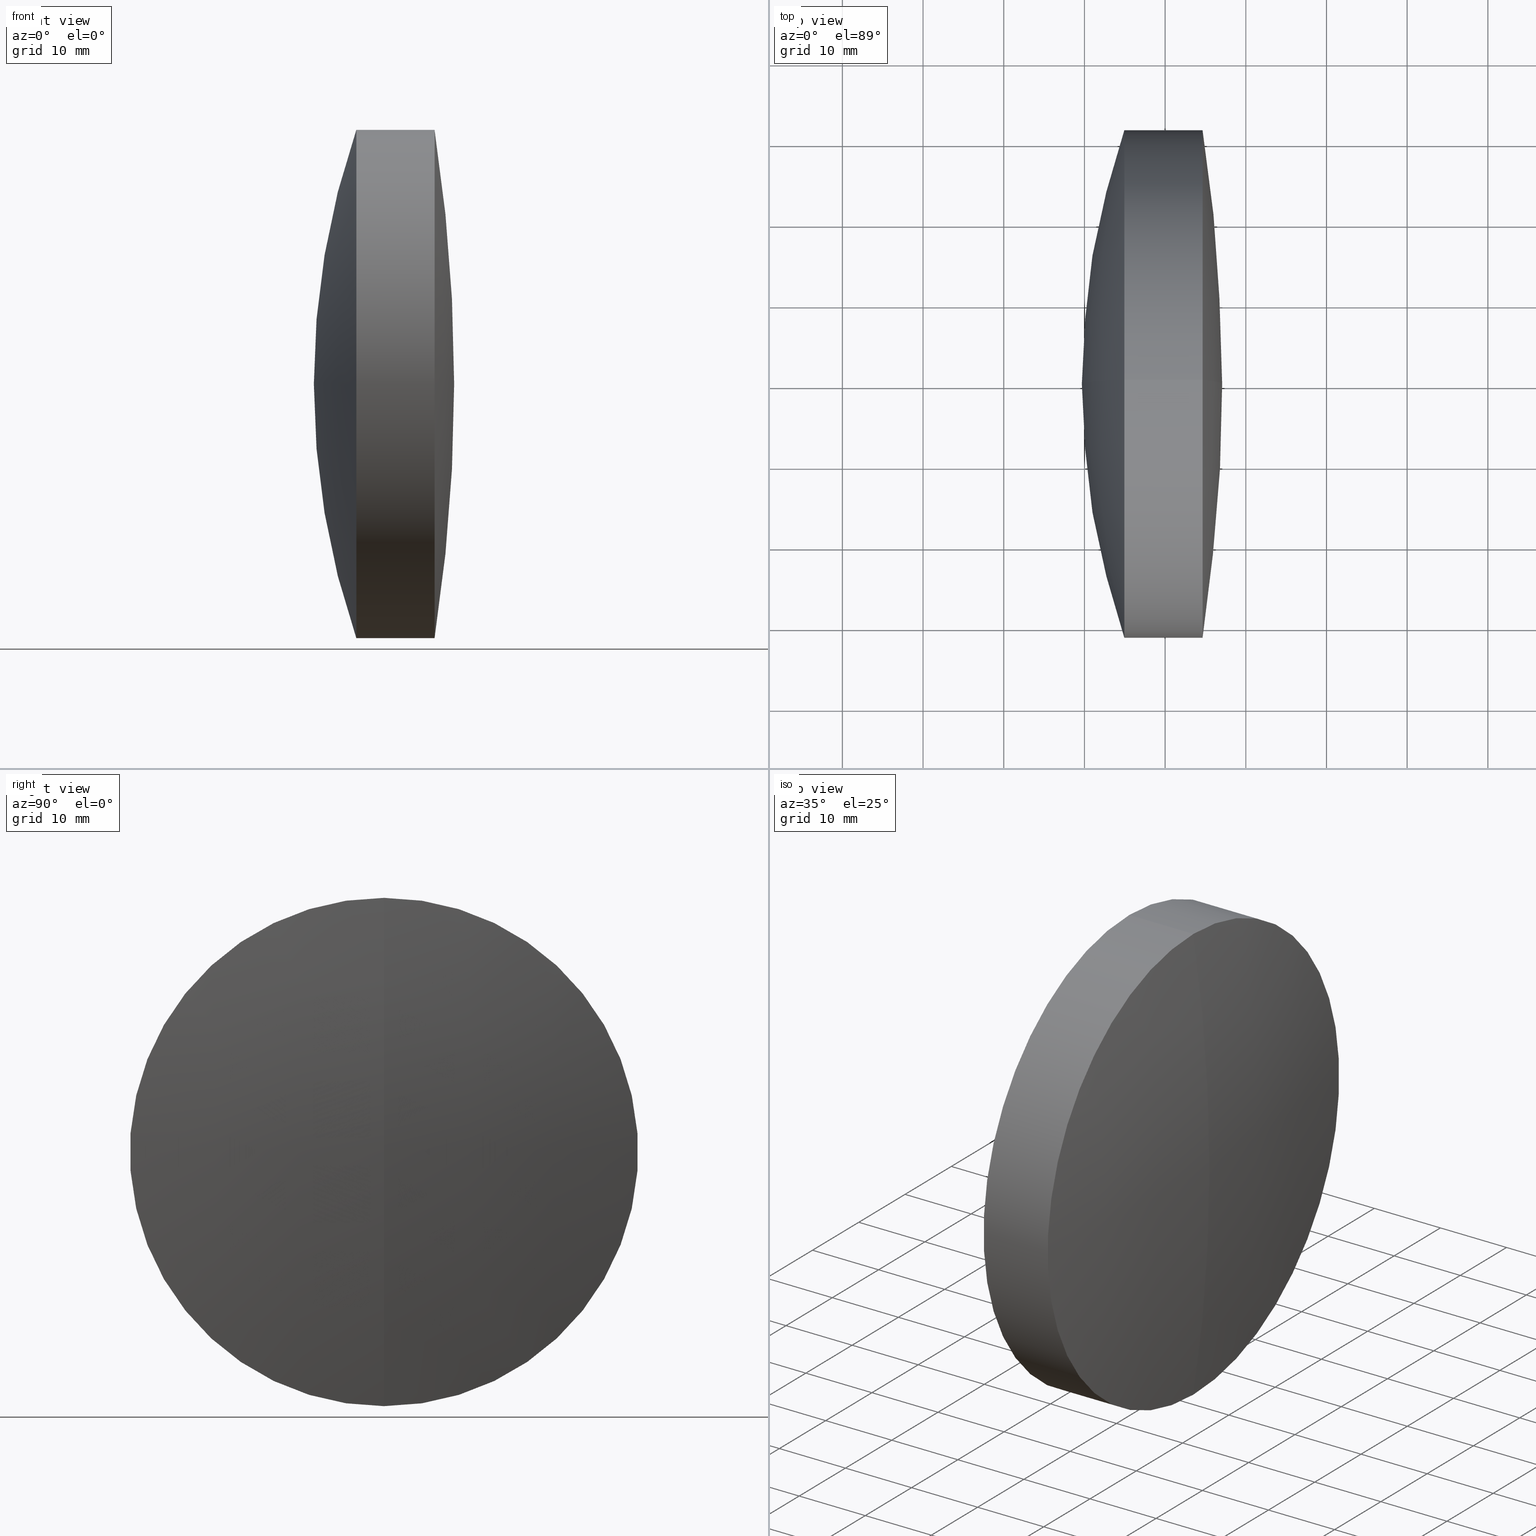
[diagram: canonical four-view strip — front | top / right | iso, engineering-drawing reading convention]
A machine part, canonical four-view strip (front | top / right | iso — engineering-drawing reading convention). The complete STEP part file that produces these views, byte-faithful:
ISO-10303-21;
HEADER;
FILE_DESCRIPTION (( 'STEP AP214' ),
    '1' );
FILE_NAME ('145099.STEP',
    '2019-05-28T02:43:21',
    ( 'user' ),
    ( '΢���й�' ),
    'SwSTEP 2.0',
    'SolidWorks 2016',
    '' );
FILE_SCHEMA (( 'AUTOMOTIVE_DESIGN' ));
ENDSEC;

DATA;
#1 = EDGE_LOOP ( 'NONE', ( #212, #343, #2, #134 ) ) ;
#2 = ORIENTED_EDGE ( 'NONE', *, *, #14, .T. ) ;
#3 = PRODUCT_DEFINITION_FORMATION_WITH_SPECIFIED_SOURCE ( '�κ�', '', #194, .NOT_KNOWN. ) ;
#4 = ORIENTED_EDGE ( 'NONE', *, *, #104, .F. ) ;
#5 = CIRCLE ( 'NONE', #95, 31.50000000000004300 ) ;
#6 = STYLED_ITEM ( 'NONE', ( #199 ), #301 ) ;
#7 = DIRECTION ( 'NONE',  ( -1.000000000000000000, -0.0000000000000000000, -0.0000000000000000000 ) ) ;
#8 = FACE_OUTER_BOUND ( 'NONE', #51, .T. ) ;
#9 = ADVANCED_FACE ( 'NONE', ( #100 ), #23, .T. ) ;
#10 = DIRECTION ( 'NONE',  ( -1.000000000000000000, -0.0000000000000000000, -0.0000000000000000000 ) ) ;
#11 = AXIS2_PLACEMENT_3D ( 'NONE', #163, #131, #336 ) ;
#12 = ORIENTED_EDGE ( 'NONE', *, *, #56, .F. ) ;
#13 = DIRECTION ( 'NONE',  ( 0.0000000000000000000, 0.0000000000000000000, 1.000000000000000000 ) ) ;
#14 = EDGE_CURVE ( 'NONE', #27, #249, #209, .T. ) ;
#15 = PRESENTATION_LAYER_ASSIGNMENT (  '', '', ( #72 ) ) ;
#16 = DIRECTION ( 'NONE',  ( 0.0000000000000000000, 0.0000000000000000000, 1.000000000000000000 ) ) ;
#17 = CARTESIAN_POINT ( 'NONE',  ( 314.9446393134603600, 0.0000000000000000000, 0.0000000000000000000 ) ) ;
#18 = DIRECTION ( 'NONE',  ( 0.0000000000000000000, 0.0000000000000000000, 1.000000000000000000 ) ) ;
#19 = ORIENTED_EDGE ( 'NONE', *, *, #267, .F. ) ;
#20 = VECTOR ( 'NONE', #139, 1000.000000000000000 ) ;
#21 = AXIS2_PLACEMENT_3D ( 'NONE', #297, #305, #18 ) ;
#22 =( NAMED_UNIT ( * ) SI_UNIT ( $, .STERADIAN. ) SOLID_ANGLE_UNIT ( ) );
#23 = SPHERICAL_SURFACE ( 'NONE', #193, 71.38999999999997200 ) ;
#24 =( NAMED_UNIT ( * ) PLANE_ANGLE_UNIT ( ) SI_UNIT ( $, .RADIAN. ) );
#25 = CARTESIAN_POINT ( 'NONE',  ( 324.6429958763490600, 0.0000000000000000000, 31.50000000000004300 ) ) ;
#26 = DIRECTION ( 'NONE',  ( -1.000000000000000000, -0.0000000000000000000, -0.0000000000000000000 ) ) ;
#27 = VERTEX_POINT ( 'NONE', #258 ) ;
#28 = ORIENTED_EDGE ( 'NONE', *, *, #104, .T. ) ;
#29 = CARTESIAN_POINT ( 'NONE',  ( 314.9446393134603600, 0.0000000000000000000, 0.0000000000000000000 ) ) ;
#30 =( GEOMETRIC_REPRESENTATION_CONTEXT ( 3 ) GLOBAL_UNCERTAINTY_ASSIGNED_CONTEXT ( ( #331 ) ) GLOBAL_UNIT_ASSIGNED_CONTEXT ( ( #35, #38, #211 ) ) REPRESENTATION_CONTEXT ( 'NONE', 'WORKASPACE' ) );
#31 = ADVANCED_FACE ( 'NONE', ( #115 ), #84, .T. ) ;
#32 = DIRECTION ( 'NONE',  ( -0.0000000000000000000, 1.000000000000000000, 1.224646799147353200E-016 ) ) ;
#33 = AXIS2_PLACEMENT_3D ( 'NONE', #311, #40, #61 ) ;
#34 = ORIENTED_EDGE ( 'NONE', *, *, #228, .T. ) ;
#35 =( LENGTH_UNIT ( ) NAMED_UNIT ( * ) SI_UNIT ( .MILLI., .METRE. ) );
#36 = UNCERTAINTY_MEASURE_WITH_UNIT (LENGTH_MEASURE( 1.000000000000000100E-005 ), #50, 'distance_accuracy_value', 'NONE');
#37 = SURFACE_SIDE_STYLE ('',( #85 ) ) ;
#38 =( NAMED_UNIT ( * ) PLANE_ANGLE_UNIT ( ) SI_UNIT ( $, .RADIAN. ) );
#39 = PRESENTATION_LAYER_ASSIGNMENT (  '', '', ( #6 ) ) ;
#40 = DIRECTION ( 'NONE',  ( -1.000000000000000000, -0.0000000000000000000, -0.0000000000000000000 ) ) ;
#41 = ORIENTED_EDGE ( 'NONE', *, *, #144, .T. ) ;
#42 = PRESENTATION_LAYER_ASSIGNMENT (  '', '', ( #215 ) ) ;
#43 = MANIFOLD_SOLID_BREP ( '��ת3', #146 ) ;
#44 = ORIENTED_EDGE ( 'NONE', *, *, #240, .T. ) ;
#45 = DIRECTION ( 'NONE',  ( 0.0000000000000000000, -1.224646799147353000E-016, 1.000000000000000000 ) ) ;
#46 = AXIS2_PLACEMENT_3D ( 'NONE', #327, #83, #156 ) ;
#47 = APPLICATION_CONTEXT ( 'automotive_design' ) ;
#48 = DIRECTION ( 'NONE',  ( 0.0000000000000000000, 1.000000000000000000, 0.0000000000000000000 ) ) ;
#49 = PRODUCT_CONTEXT ( 'NONE', #325, 'mechanical' ) ;
#50 =( LENGTH_UNIT ( ) NAMED_UNIT ( * ) SI_UNIT ( .MILLI., .METRE. ) );
#51 = EDGE_LOOP ( 'NONE', ( #81, #248, #188 ) ) ;
#52 = DIRECTION ( 'NONE',  ( 0.0000000000000000000, 0.0000000000000000000, -1.000000000000000000 ) ) ;
#53 = ORIENTED_EDGE ( 'NONE', *, *, #56, .T. ) ;
#54 = UNCERTAINTY_MEASURE_WITH_UNIT (LENGTH_MEASURE( 1.000000000000000100E-005 ), #102, 'distance_accuracy_value', 'NONE');
#55 = AXIS2_PLACEMENT_3D ( 'NONE', #306, #132, #111 ) ;
#56 = EDGE_CURVE ( 'NONE', #27, #59, #345, .T. ) ;
#57 = DIRECTION ( 'NONE',  ( 0.0000000000000000000, 0.0000000000000000000, 1.000000000000000000 ) ) ;
#58 = VERTEX_POINT ( 'NONE', #272 ) ;
#59 = VERTEX_POINT ( 'NONE', #113 ) ;
#60 = DIRECTION ( 'NONE',  ( 0.0000000000000000000, 1.000000000000000000, 0.0000000000000000000 ) ) ;
#61 = DIRECTION ( 'NONE',  ( 0.0000000000000000000, 0.0000000000000000000, 1.000000000000000000 ) ) ;
#62 = ORIENTED_EDGE ( 'NONE', *, *, #105, .T. ) ;
#63 = AXIS2_PLACEMENT_3D ( 'NONE', #274, #162, #254 ) ;
#64 = AXIS2_PLACEMENT_3D ( 'NONE', #97, #170, #75 ) ;
#65 = CARTESIAN_POINT ( 'NONE',  ( 406.5500261637979500, 0.0000000000000000000, -1.762383016502577900E-014 ) ) ;
#66 = AXIS2_PLACEMENT_3D ( 'NONE', #17, #205, #125 ) ;
#67 = CARTESIAN_POINT ( 'NONE',  ( 316.7446973952964400, 3.857637417314154000E-015, -31.50000000000008500 ) ) ;
#68 = CARTESIAN_POINT ( 'NONE',  ( 252.6800261637979200, 0.0000000000000000000, -1.590052234597280500E-013 ) ) ;
#69 = ORIENTED_EDGE ( 'NONE', *, *, #228, .F. ) ;
#70 =( LENGTH_UNIT ( ) NAMED_UNIT ( * ) SI_UNIT ( .MILLI., .METRE. ) );
#71 =( NAMED_UNIT ( * ) PLANE_ANGLE_UNIT ( ) SI_UNIT ( $, .RADIAN. ) );
#72 = STYLED_ITEM ( 'NONE', ( #79 ), #171 ) ;
#73 = ORIENTED_EDGE ( 'NONE', *, *, #247, .T. ) ;
#74 = UNCERTAINTY_MEASURE_WITH_UNIT (LENGTH_MEASURE( 1.000000000000000100E-005 ), #70, 'distance_accuracy_value', 'NONE');
#75 = DIRECTION ( 'NONE',  ( 0.0000000000000000000, -1.224646799147353000E-016, 1.000000000000000000 ) ) ;
#76 = ADVANCED_FACE ( 'NONE', ( #329 ), #324, .F. ) ;
#77 = EDGE_LOOP ( 'NONE', ( #53, #284, #283, #224 ) ) ;
#78 =( NAMED_UNIT ( * ) SI_UNIT ( $, .STERADIAN. ) SOLID_ANGLE_UNIT ( ) );
#79 = PRESENTATION_STYLE_ASSIGNMENT (( #158 ) ) ;
#80 = ORIENTED_EDGE ( 'NONE', *, *, #222, .T. ) ;
#81 = ORIENTED_EDGE ( 'NONE', *, *, #319, .F. ) ;
#82 = COLOUR_RGB ( '',1.000000000000000000, 1.000000000000000000, 1.000000000000000000 ) ;
#83 = DIRECTION ( 'NONE',  ( -1.000000000000000000, -0.0000000000000000000, -0.0000000000000000000 ) ) ;
#84 = CYLINDRICAL_SURFACE ( 'NONE', #157, 31.49999999999998600 ) ;
#85 = SURFACE_STYLE_FILL_AREA ( #230 ) ;
#86 = EDGE_CURVE ( 'NONE', #243, #137, #340, .T. ) ;
#87 = DIRECTION ( 'NONE',  ( -0.0000000000000000000, 1.000000000000000000, 1.224646799147353200E-016 ) ) ;
#88 = CARTESIAN_POINT ( 'NONE',  ( 324.0700261637978800, 0.0000000000000000000, -1.546338467101715600E-013 ) ) ;
#89 = CARTESIAN_POINT ( 'NONE',  ( 124.5233095260452400, 0.0000000000000000000, 0.0000000000000000000 ) ) ;
#90 = DIRECTION ( 'NONE',  ( 0.0000000000000000000, 0.0000000000000000000, 1.000000000000000000 ) ) ;
#91 = AXIS2_PLACEMENT_3D ( 'NONE', #266, #210, #13 ) ;
#92 = VERTEX_POINT ( 'NONE', #160 ) ;
#93 = DIRECTION ( 'NONE',  ( -1.000000000000000000, -0.0000000000000000000, -0.0000000000000000000 ) ) ;
#94 = DIRECTION ( 'NONE',  ( -1.000000000000000000, -0.0000000000000000000, -0.0000000000000000000 ) ) ;
#95 = AXIS2_PLACEMENT_3D ( 'NONE', #190, #184, #154 ) ;
#96 = CLOSED_SHELL ( 'NONE', ( #164, #196, #149, #227, #317, #9 ) ) ;
#97 = CARTESIAN_POINT ( 'NONE',  ( 252.6800261637979200, 0.0000000000000000000, -1.590052234597280500E-013 ) ) ;
#98 = DIRECTION ( 'NONE',  ( 0.0000000000000000000, 0.0000000000000000000, 1.000000000000000000 ) ) ;
#99 = EDGE_LOOP ( 'NONE', ( #117, #126, #321 ) ) ;
#100 = FACE_OUTER_BOUND ( 'NONE', #120, .T. ) ;
#101 = DIRECTION ( 'NONE',  ( 0.0000000000000000000, -1.000000000000000000, 0.0000000000000000000 ) ) ;
#102 =( LENGTH_UNIT ( ) NAMED_UNIT ( * ) SI_UNIT ( .MILLI., .METRE. ) );
#103 = AXIS2_PLACEMENT_3D ( 'NONE', #65, #60, #308 ) ;
#104 = EDGE_CURVE ( 'NONE', #218, #137, #312, .T. ) ;
#105 = EDGE_CURVE ( 'NONE', #172, #218, #302, .T. ) ;
#106 = PRODUCT_DEFINITION ( 'δ֪', '', #3, #253 ) ;
#107 = ADVANCED_FACE ( 'NONE', ( #339 ), #300, .F. ) ;
#108 = CARTESIAN_POINT ( 'NONE',  ( 316.7446973952964400, 0.0000000000000000000, 0.0000000000000000000 ) ) ;
#109 = VECTOR ( 'NONE', #93, 1000.000000000000000 ) ;
#110 = AXIS2_PLACEMENT_3D ( 'NONE', #281, #150, #217 ) ;
#111 = DIRECTION ( 'NONE',  ( 0.0000000000000000000, 0.0000000000000000000, -1.000000000000000000 ) ) ;
#112 = FILL_AREA_STYLE_COLOUR ( '', #82 ) ;
#113 = CARTESIAN_POINT ( 'NONE',  ( 316.7446973952964400, 3.857637417314150900E-015, -31.49999999999990400 ) ) ;
#114 = EDGE_CURVE ( 'NONE', #58, #172, #307, .T. ) ;
#115 = FACE_OUTER_BOUND ( 'NONE', #143, .T. ) ;
#116 = SHAPE_DEFINITION_REPRESENTATION ( #295, #171 ) ;
#117 = ORIENTED_EDGE ( 'NONE', *, *, #114, .F. ) ;
#118 = DIRECTION ( 'NONE',  ( 0.0000000000000000000, 1.000000000000000000, 0.0000000000000000000 ) ) ;
#119 = PRODUCT_RELATED_PRODUCT_CATEGORY ( 'part', '', ( #194 ) ) ;
#120 = EDGE_LOOP ( 'NONE', ( #19, #34, #299 ) ) ;
#121 = DIRECTION ( 'NONE',  ( 1.000000000000000000, 0.0000000000000000000, 0.0000000000000000000 ) ) ;
#122 = CIRCLE ( 'NONE', #290, 205.6299999999999700 ) ;
#123 = EDGE_CURVE ( 'NONE', #218, #172, #5, .T. ) ;
#124 = DIRECTION ( 'NONE',  ( -1.000000000000000000, -0.0000000000000000000, -0.0000000000000000000 ) ) ;
#125 = DIRECTION ( 'NONE',  ( 0.0000000000000000000, 0.0000000000000000000, 1.000000000000000000 ) ) ;
#126 = ORIENTED_EDGE ( 'NONE', *, *, #319, .T. ) ;
#127 = CYLINDRICAL_SURFACE ( 'NONE', #298, 31.49999999999990400 ) ;
#128 = ORIENTED_EDGE ( 'NONE', *, *, #222, .F. ) ;
#129 = AXIS2_PLACEMENT_3D ( 'NONE', #316, #245, #52 ) ;
#130 = LINE ( 'NONE', #165, #109 ) ;
#131 = DIRECTION ( 'NONE',  ( 0.0000000000000000000, 1.000000000000000000, 0.0000000000000000000 ) ) ;
#132 = DIRECTION ( 'NONE',  ( 0.0000000000000000000, -1.000000000000000000, 0.0000000000000000000 ) ) ;
#133 = EDGE_LOOP ( 'NONE', ( #286, #80, #203 ) ) ;
#134 = ORIENTED_EDGE ( 'NONE', *, *, #247, .F. ) ;
#135 = MECHANICAL_DESIGN_GEOMETRIC_PRESENTATION_REPRESENTATION (  '', ( #215 ), #152 ) ;
#136 = CARTESIAN_POINT ( 'NONE',  ( 124.5233095260452400, 0.0000000000000000000, 0.0000000000000000000 ) ) ;
#137 = VERTEX_POINT ( 'NONE', #237 ) ;
#138 = FILL_AREA_STYLE_COLOUR ( '', #166 ) ;
#139 = DIRECTION ( 'NONE',  ( -1.000000000000000000, -0.0000000000000000000, -0.0000000000000000000 ) ) ;
#140 = CARTESIAN_POINT ( 'NONE',  ( 121.4400261637978700, 0.0000000000000000000, 0.0000000000000000000 ) ) ;
#141 = ADVANCED_FACE ( 'NONE', ( #293 ), #268, .T. ) ;
#142 =( GEOMETRIC_REPRESENTATION_CONTEXT ( 3 ) GLOBAL_UNCERTAINTY_ASSIGNED_CONTEXT ( ( #54 ) ) GLOBAL_UNIT_ASSIGNED_CONTEXT ( ( #102, #238, #242 ) ) REPRESENTATION_CONTEXT ( 'NONE', 'WORKASPACE' ) );
#143 = EDGE_LOOP ( 'NONE', ( #241, #323, #153, #4 ) ) ;
#144 = EDGE_CURVE ( 'NONE', #279, #243, #270, .T. ) ;
#145 = DIRECTION ( 'NONE',  ( -1.000000000000000000, -0.0000000000000000000, -0.0000000000000000000 ) ) ;
#146 = CLOSED_SHELL ( 'NONE', ( #221, #31, #107, #76, #141, #320 ) ) ;
#147 = FILL_AREA_STYLE ('',( #288 ) ) ;
#148 = DIRECTION ( 'NONE',  ( -1.000000000000000000, -0.0000000000000000000, -0.0000000000000000000 ) ) ;
#149 = ADVANCED_FACE ( 'NONE', ( #280 ), #276, .T. ) ;
#150 = DIRECTION ( 'NONE',  ( 0.0000000000000000000, 1.000000000000000000, 0.0000000000000000000 ) ) ;
#151 = CARTESIAN_POINT ( 'NONE',  ( 309.6800261637979500, 0.0000000000000000000, -1.169225339335557400E-014 ) ) ;
#152 =( GEOMETRIC_REPRESENTATION_CONTEXT ( 3 ) GLOBAL_UNCERTAINTY_ASSIGNED_CONTEXT ( ( #36 ) ) GLOBAL_UNIT_ASSIGNED_CONTEXT ( ( #50, #24, #22 ) ) REPRESENTATION_CONTEXT ( 'NONE', 'WORKASPACE' ) );
#153 = ORIENTED_EDGE ( 'NONE', *, *, #202, .F. ) ;
#154 = DIRECTION ( 'NONE',  ( 0.0000000000000000000, 0.0000000000000000000, 1.000000000000000000 ) ) ;
#155 = EDGE_LOOP ( 'NONE', ( #128, #41, #338 ) ) ;
#156 = DIRECTION ( 'NONE',  ( 0.0000000000000000000, 0.0000000000000000000, 1.000000000000000000 ) ) ;
#157 = AXIS2_PLACEMENT_3D ( 'NONE', #282, #148, #314 ) ;
#158 = SURFACE_STYLE_USAGE ( .BOTH. , #37 ) ;
#159 = MECHANICAL_DESIGN_GEOMETRIC_PRESENTATION_REPRESENTATION (  '', ( #72 ), #30 ) ;
#160 = CARTESIAN_POINT ( 'NONE',  ( 314.9446393134603600, 3.857637417314149300E-015, -31.49999999999991100 ) ) ;
#161 = APPLICATION_PROTOCOL_DEFINITION ( 'draft international standard', 'automotive_design', 1998, #325 ) ;
#162 = DIRECTION ( 'NONE',  ( 0.0000000000000000000, 1.000000000000000000, 0.0000000000000000000 ) ) ;
#163 = CARTESIAN_POINT ( 'NONE',  ( 121.4400261637978700, 0.0000000000000000000, 0.0000000000000000000 ) ) ;
#164 = ADVANCED_FACE ( 'NONE', ( #289 ), #263, .T. ) ;
#165 = CARTESIAN_POINT ( 'NONE',  ( -0.5519199926577972300, 3.857637417314161100E-015, -31.49999999999998600 ) ) ;
#166 = COLOUR_RGB ( '',1.000000000000000000, 1.000000000000000000, 1.000000000000000000 ) ;
#167 = SPHERICAL_SURFACE ( 'NONE', #178, 205.6299999999999700 ) ;
#168 = EDGE_CURVE ( 'NONE', #249, #175, #260, .T. ) ;
#169 = VECTOR ( 'NONE', #294, 1000.000000000000000 ) ;
#170 = DIRECTION ( 'NONE',  ( -0.0000000000000000000, 1.000000000000000000, 1.224646799147353200E-016 ) ) ;
#171 = ADVANCED_BREP_SHAPE_REPRESENTATION ( '145099', ( #301, #43, #333 ), #142 ) ;
#172 = VERTEX_POINT ( 'NONE', #341 ) ;
#173 = CARTESIAN_POINT ( 'NONE',  ( 252.6800261637979200, 0.0000000000000000000, -1.590052234597280500E-013 ) ) ;
#174 = SURFACE_STYLE_FILL_AREA ( #147 ) ;
#175 = VERTEX_POINT ( 'NONE', #151 ) ;
#176 = AXIS2_PLACEMENT_3D ( 'NONE', #108, #124, #304 ) ;
#177 = DIRECTION ( 'NONE',  ( 0.0000000000000000000, -1.000000000000000000, 0.0000000000000000000 ) ) ;
#178 = AXIS2_PLACEMENT_3D ( 'NONE', #140, #118, #57 ) ;
#179 = EDGE_CURVE ( 'NONE', #92, #175, #257, .T. ) ;
#180 = SURFACE_SIDE_STYLE ('',( #174 ) ) ;
#181 = ORIENTED_EDGE ( 'NONE', *, *, #179, .F. ) ;
#182 = LINE ( 'NONE', #291, #169 ) ;
#183 = CIRCLE ( 'NONE', #64, 71.38999999999997200 ) ;
#184 = DIRECTION ( 'NONE',  ( -1.000000000000000000, -0.0000000000000000000, -0.0000000000000000000 ) ) ;
#185 = AXIS2_PLACEMENT_3D ( 'NONE', #229, #94, #303 ) ;
#186 = ORIENTED_EDGE ( 'NONE', *, *, #86, .F. ) ;
#187 = COLOUR_RGB ( '',1.000000000000000000, 1.000000000000000000, 1.000000000000000000 ) ;
#188 = ORIENTED_EDGE ( 'NONE', *, *, #123, .F. ) ;
#189 = CIRCLE ( 'NONE', #246, 31.49999999999990400 ) ;
#190 = CARTESIAN_POINT ( 'NONE',  ( 324.6429958763490600, 0.0000000000000000000, 0.0000000000000000000 ) ) ;
#191 = ORIENTED_EDGE ( 'NONE', *, *, #267, .T. ) ;
#192 = FACE_OUTER_BOUND ( 'NONE', #1, .T. ) ;
#193 = AXIS2_PLACEMENT_3D ( 'NONE', #220, #48, #231 ) ;
#194 = PRODUCT ( '145099', '145099', '', ( #49 ) ) ;
#195 = DIRECTION ( 'NONE',  ( 0.0000000000000000000, 0.0000000000000000000, -1.000000000000000000 ) ) ;
#196 = ADVANCED_FACE ( 'NONE', ( #264 ), #244, .T. ) ;
#197 = CARTESIAN_POINT ( 'NONE',  ( 121.4400261637978700, 0.0000000000000000000, 0.0000000000000000000 ) ) ;
#198 = SURFACE_STYLE_USAGE ( .BOTH. , #235 ) ;
#199 = PRESENTATION_STYLE_ASSIGNMENT (( #213 ) ) ;
#200 = ORIENTED_EDGE ( 'NONE', *, *, #179, .T. ) ;
#201 =( GEOMETRIC_REPRESENTATION_CONTEXT ( 3 ) GLOBAL_UNCERTAINTY_ASSIGNED_CONTEXT ( ( #74 ) ) GLOBAL_UNIT_ASSIGNED_CONTEXT ( ( #70, #71, #78 ) ) REPRESENTATION_CONTEXT ( 'NONE', 'WORKASPACE' ) );
#202 = EDGE_CURVE ( 'NONE', #137, #243, #344, .T. ) ;
#203 = ORIENTED_EDGE ( 'NONE', *, *, #202, .T. ) ;
#204 = FACE_OUTER_BOUND ( 'NONE', #99, .T. ) ;
#205 = DIRECTION ( 'NONE',  ( -1.000000000000000000, -0.0000000000000000000, -0.0000000000000000000 ) ) ;
#206 = AXIS2_PLACEMENT_3D ( 'NONE', #252, #87, #261 ) ;
#207 = VECTOR ( 'NONE', #145, 1000.000000000000000 ) ;
#208 = CIRCLE ( 'NONE', #129, 71.38999999999997200 ) ;
#209 = LINE ( 'NONE', #313, #207 ) ;
#210 = DIRECTION ( 'NONE',  ( -1.000000000000000000, -0.0000000000000000000, -0.0000000000000000000 ) ) ;
#211 =( NAMED_UNIT ( * ) SI_UNIT ( $, .STERADIAN. ) SOLID_ANGLE_UNIT ( ) );
#212 = ORIENTED_EDGE ( 'NONE', *, *, #273, .F. ) ;
#213 = SURFACE_STYLE_USAGE ( .BOTH. , #180 ) ;
#214 = ORIENTED_EDGE ( 'NONE', *, *, #168, .T. ) ;
#215 = STYLED_ITEM ( 'NONE', ( #328 ), #43 ) ;
#216 = CIRCLE ( 'NONE', #66, 31.49999999999990400 ) ;
#217 = DIRECTION ( 'NONE',  ( 0.0000000000000000000, 0.0000000000000000000, 1.000000000000000000 ) ) ;
#218 = VERTEX_POINT ( 'NONE', #25 ) ;
#219 = CIRCLE ( 'NONE', #21, 31.49999999999990400 ) ;
#220 = CARTESIAN_POINT ( 'NONE',  ( 252.6800261637979200, 0.0000000000000000000, -1.590052234597280500E-013 ) ) ;
#221 = ADVANCED_FACE ( 'NONE', ( #8 ), #334, .T. ) ;
#222 = EDGE_CURVE ( 'NONE', #279, #137, #250, .T. ) ;
#223 = AXIS2_PLACEMENT_3D ( 'NONE', #68, #101, #195 ) ;
#224 = ORIENTED_EDGE ( 'NONE', *, *, #14, .F. ) ;
#225 = EDGE_LOOP ( 'NONE', ( #292, #62, #28, #186 ) ) ;
#226 = CARTESIAN_POINT ( 'NONE',  ( -0.5519199926577972300, 0.0000000000000000000, 31.49999999999998600 ) ) ;
#227 = ADVANCED_FACE ( 'NONE', ( #256 ), #234, .T. ) ;
#228 = EDGE_CURVE ( 'NONE', #269, #27, #208, .T. ) ;
#229 = CARTESIAN_POINT ( 'NONE',  ( -0.5519199926577972300, 0.0000000000000000000, 0.0000000000000000000 ) ) ;
#230 = FILL_AREA_STYLE ('',( #112 ) ) ;
#231 = DIRECTION ( 'NONE',  ( 0.0000000000000000000, 0.0000000000000000000, 1.000000000000000000 ) ) ;
#232 = AXIS2_PLACEMENT_3D ( 'NONE', #310, #346, #277 ) ;
#233 = SURFACE_STYLE_FILL_AREA ( #315 ) ;
#234 = SPHERICAL_SURFACE ( 'NONE', #318, 96.86999999999999000 ) ;
#235 = SURFACE_SIDE_STYLE ('',( #233 ) ) ;
#236 = EDGE_CURVE ( 'NONE', #59, #27, #219, .T. ) ;
#237 = CARTESIAN_POINT ( 'NONE',  ( 316.7446973952964400, 0.0000000000000000000, 31.49999999999993200 ) ) ;
#238 =( NAMED_UNIT ( * ) PLANE_ANGLE_UNIT ( ) SI_UNIT ( $, .RADIAN. ) );
#239 = DIRECTION ( 'NONE',  ( 0.0000000000000000000, -1.224646799147353200E-016, 1.000000000000000000 ) ) ;
#240 = EDGE_CURVE ( 'NONE', #249, #92, #189, .T. ) ;
#241 = ORIENTED_EDGE ( 'NONE', *, *, #123, .T. ) ;
#242 =( NAMED_UNIT ( * ) SI_UNIT ( $, .STERADIAN. ) SOLID_ANGLE_UNIT ( ) );
#243 = VERTEX_POINT ( 'NONE', #67 ) ;
#244 = CYLINDRICAL_SURFACE ( 'NONE', #278, 31.49999999999990400 ) ;
#245 = DIRECTION ( 'NONE',  ( 0.0000000000000000000, -1.000000000000000000, 0.0000000000000000000 ) ) ;
#246 = AXIS2_PLACEMENT_3D ( 'NONE', #29, #26, #16 ) ;
#247 = EDGE_CURVE ( 'NONE', #92, #249, #216, .T. ) ;
#248 = ORIENTED_EDGE ( 'NONE', *, *, #114, .T. ) ;
#249 = VERTEX_POINT ( 'NONE', #309 ) ;
#250 = CIRCLE ( 'NONE', #223, 71.38999999999998600 ) ;
#251 = AXIS2_PLACEMENT_3D ( 'NONE', #173, #271, #45 ) ;
#252 = CARTESIAN_POINT ( 'NONE',  ( 121.4400261637978700, 0.0000000000000000000, 0.0000000000000000000 ) ) ;
#253 = PRODUCT_DEFINITION_CONTEXT ( 'detailed design', #47, 'design' ) ;
#254 = DIRECTION ( 'NONE',  ( 0.0000000000000000000, 0.0000000000000000000, 1.000000000000000000 ) ) ;
#255 = EDGE_LOOP ( 'NONE', ( #44, #200, #296 ) ) ;
#256 = FACE_OUTER_BOUND ( 'NONE', #287, .T. ) ;
#257 = CIRCLE ( 'NONE', #342, 96.86999999999999000 ) ;
#258 = CARTESIAN_POINT ( 'NONE',  ( 316.7446973952964400, 0.0000000000000000000, 31.49999999999990400 ) ) ;
#259 = APPLICATION_PROTOCOL_DEFINITION ( 'draft international standard', 'automotive_design', 1998, #47 ) ;
#260 = CIRCLE ( 'NONE', #55, 96.86999999999999000 ) ;
#261 = DIRECTION ( 'NONE',  ( 0.0000000000000000000, -1.224646799147353500E-016, 1.000000000000000000 ) ) ;
#262 = MECHANICAL_DESIGN_GEOMETRIC_PRESENTATION_REPRESENTATION (  '', ( #6 ), #201 ) ;
#263 = SPHERICAL_SURFACE ( 'NONE', #110, 71.38999999999997200 ) ;
#264 = FACE_OUTER_BOUND ( 'NONE', #77, .T. ) ;
#265 = CARTESIAN_POINT ( 'NONE',  ( 406.5500261637979500, 0.0000000000000000000, -1.762383016502577900E-014 ) ) ;
#266 = CARTESIAN_POINT ( 'NONE',  ( 324.6429958763490600, 0.0000000000000000000, 0.0000000000000000000 ) ) ;
#267 = EDGE_CURVE ( 'NONE', #269, #59, #183, .T. ) ;
#268 = CYLINDRICAL_SURFACE ( 'NONE', #185, 31.49999999999998600 ) ;
#269 = VERTEX_POINT ( 'NONE', #88 ) ;
#270 = CIRCLE ( 'NONE', #251, 71.38999999999998600 ) ;
#271 = DIRECTION ( 'NONE',  ( -0.0000000000000000000, 1.000000000000000000, 1.224646799147353200E-016 ) ) ;
#272 = CARTESIAN_POINT ( 'NONE',  ( 327.0700261637978800, 0.0000000000000000000, 1.259120606543351200E-014 ) ) ;
#273 = EDGE_CURVE ( 'NONE', #59, #92, #182, .T. ) ;
#274 = CARTESIAN_POINT ( 'NONE',  ( 252.6800261637979200, 0.0000000000000000000, -1.590052234597280500E-013 ) ) ;
#275 = EDGE_LOOP ( 'NONE', ( #69, #191, #12 ) ) ;
#276 = SPHERICAL_SURFACE ( 'NONE', #103, 96.86999999999999000 ) ;
#277 = DIRECTION ( 'NONE',  ( 0.0000000000000000000, 0.0000000000000000000, 1.000000000000000000 ) ) ;
#278 = AXIS2_PLACEMENT_3D ( 'NONE', #89, #7, #330 ) ;
#279 = VERTEX_POINT ( 'NONE', #322 ) ;
#280 = FACE_OUTER_BOUND ( 'NONE', #255, .T. ) ;
#281 = CARTESIAN_POINT ( 'NONE',  ( 252.6800261637979200, 0.0000000000000000000, -1.590052234597280500E-013 ) ) ;
#282 = CARTESIAN_POINT ( 'NONE',  ( -0.5519199926577972300, 0.0000000000000000000, 0.0000000000000000000 ) ) ;
#283 = ORIENTED_EDGE ( 'NONE', *, *, #240, .F. ) ;
#284 = ORIENTED_EDGE ( 'NONE', *, *, #273, .T. ) ;
#285 = CARTESIAN_POINT ( 'NONE',  ( 406.5500261637979500, 0.0000000000000000000, -1.762383016502577900E-014 ) ) ;
#286 = ORIENTED_EDGE ( 'NONE', *, *, #144, .F. ) ;
#287 = EDGE_LOOP ( 'NONE', ( #181, #73, #214 ) ) ;
#288 = FILL_AREA_STYLE_COLOUR ( '', #187 ) ;
#289 = FACE_OUTER_BOUND ( 'NONE', #275, .T. ) ;
#290 = AXIS2_PLACEMENT_3D ( 'NONE', #197, #177, #347 ) ;
#291 = CARTESIAN_POINT ( 'NONE',  ( 124.5233095260452400, 3.857637417314150900E-015, -31.49999999999990400 ) ) ;
#292 = ORIENTED_EDGE ( 'NONE', *, *, #326, .F. ) ;
#293 = FACE_OUTER_BOUND ( 'NONE', #225, .T. ) ;
#294 = DIRECTION ( 'NONE',  ( -1.000000000000000000, -0.0000000000000000000, -0.0000000000000000000 ) ) ;
#295 = PRODUCT_DEFINITION_SHAPE ( 'NONE', 'NONE',  #106 ) ;
#296 = ORIENTED_EDGE ( 'NONE', *, *, #168, .F. ) ;
#297 = CARTESIAN_POINT ( 'NONE',  ( 316.7446973952964400, 0.0000000000000000000, 0.0000000000000000000 ) ) ;
#298 = AXIS2_PLACEMENT_3D ( 'NONE', #136, #10, #90 ) ;
#299 = ORIENTED_EDGE ( 'NONE', *, *, #236, .F. ) ;
#300 = SPHERICAL_SURFACE ( 'NONE', #232, 71.38999999999998600 ) ;
#301 = MANIFOLD_SOLID_BREP ( '��ת1', #96 ) ;
#302 = CIRCLE ( 'NONE', #91, 31.50000000000004300 ) ;
#303 = DIRECTION ( 'NONE',  ( 0.0000000000000000000, 0.0000000000000000000, 1.000000000000000000 ) ) ;
#304 = DIRECTION ( 'NONE',  ( 0.0000000000000000000, 0.0000000000000000000, 1.000000000000000000 ) ) ;
#305 = DIRECTION ( 'NONE',  ( -1.000000000000000000, -0.0000000000000000000, -0.0000000000000000000 ) ) ;
#306 = CARTESIAN_POINT ( 'NONE',  ( 406.5500261637979500, 0.0000000000000000000, -1.762383016502577900E-014 ) ) ;
#307 = CIRCLE ( 'NONE', #206, 205.6299999999999700 ) ;
#308 = DIRECTION ( 'NONE',  ( 0.0000000000000000000, 0.0000000000000000000, 1.000000000000000000 ) ) ;
#309 = CARTESIAN_POINT ( 'NONE',  ( 314.9446393134603600, 0.0000000000000000000, 31.49999999999989000 ) ) ;
#310 = CARTESIAN_POINT ( 'NONE',  ( 252.6800261637979200, 0.0000000000000000000, -1.590052234597280500E-013 ) ) ;
#311 = CARTESIAN_POINT ( 'NONE',  ( 316.7446973952964400, 0.0000000000000000000, 0.0000000000000000000 ) ) ;
#312 = LINE ( 'NONE', #226, #20 ) ;
#313 = CARTESIAN_POINT ( 'NONE',  ( 124.5233095260452400, 0.0000000000000000000, 31.49999999999990400 ) ) ;
#314 = DIRECTION ( 'NONE',  ( 0.0000000000000000000, 0.0000000000000000000, 1.000000000000000000 ) ) ;
#315 = FILL_AREA_STYLE ('',( #138 ) ) ;
#316 = CARTESIAN_POINT ( 'NONE',  ( 252.6800261637979200, 0.0000000000000000000, -1.590052234597280500E-013 ) ) ;
#317 = ADVANCED_FACE ( 'NONE', ( #192 ), #127, .T. ) ;
#318 = AXIS2_PLACEMENT_3D ( 'NONE', #285, #332, #98 ) ;
#319 = EDGE_CURVE ( 'NONE', #58, #218, #122, .T. ) ;
#320 = ADVANCED_FACE ( 'NONE', ( #204 ), #167, .T. ) ;
#321 = ORIENTED_EDGE ( 'NONE', *, *, #105, .F. ) ;
#322 = CARTESIAN_POINT ( 'NONE',  ( 324.0700261637978800, 0.0000000000000000000, -1.546338467101715600E-013 ) ) ;
#323 = ORIENTED_EDGE ( 'NONE', *, *, #326, .T. ) ;
#324 = SPHERICAL_SURFACE ( 'NONE', #63, 71.38999999999998600 ) ;
#325 = APPLICATION_CONTEXT ( 'automotive_design' ) ;
#326 = EDGE_CURVE ( 'NONE', #172, #243, #130, .T. ) ;
#327 = CARTESIAN_POINT ( 'NONE',  ( 316.7446973952964400, 0.0000000000000000000, 0.0000000000000000000 ) ) ;
#328 = PRESENTATION_STYLE_ASSIGNMENT (( #198 ) ) ;
#329 = FACE_OUTER_BOUND ( 'NONE', #133, .T. ) ;
#330 = DIRECTION ( 'NONE',  ( 0.0000000000000000000, 0.0000000000000000000, 1.000000000000000000 ) ) ;
#331 = UNCERTAINTY_MEASURE_WITH_UNIT (LENGTH_MEASURE( 1.000000000000000100E-005 ), #35, 'distance_accuracy_value', 'NONE');
#332 = DIRECTION ( 'NONE',  ( 0.0000000000000000000, 1.000000000000000000, 0.0000000000000000000 ) ) ;
#333 = AXIS2_PLACEMENT_3D ( 'NONE', #335, #337, #121 ) ;
#334 = SPHERICAL_SURFACE ( 'NONE', #11, 205.6299999999999700 ) ;
#335 = CARTESIAN_POINT ( 'NONE',  ( 0.0000000000000000000, 0.0000000000000000000, 0.0000000000000000000 ) ) ;
#336 = DIRECTION ( 'NONE',  ( 0.0000000000000000000, 0.0000000000000000000, 1.000000000000000000 ) ) ;
#337 = DIRECTION ( 'NONE',  ( 0.0000000000000000000, 0.0000000000000000000, 1.000000000000000000 ) ) ;
#338 = ORIENTED_EDGE ( 'NONE', *, *, #86, .T. ) ;
#339 = FACE_OUTER_BOUND ( 'NONE', #155, .T. ) ;
#340 = CIRCLE ( 'NONE', #33, 31.49999999999993200 ) ;
#341 = CARTESIAN_POINT ( 'NONE',  ( 324.6429958763490600, 3.857637417314168200E-015, -31.50000000000004300 ) ) ;
#342 = AXIS2_PLACEMENT_3D ( 'NONE', #265, #32, #239 ) ;
#343 = ORIENTED_EDGE ( 'NONE', *, *, #236, .T. ) ;
#344 = CIRCLE ( 'NONE', #46, 31.49999999999993200 ) ;
#345 = CIRCLE ( 'NONE', #176, 31.49999999999990400 ) ;
#346 = DIRECTION ( 'NONE',  ( 0.0000000000000000000, 1.000000000000000000, 0.0000000000000000000 ) ) ;
#347 = DIRECTION ( 'NONE',  ( 0.0000000000000000000, 0.0000000000000000000, -1.000000000000000000 ) ) ;
ENDSEC;
END-ISO-10303-21;
